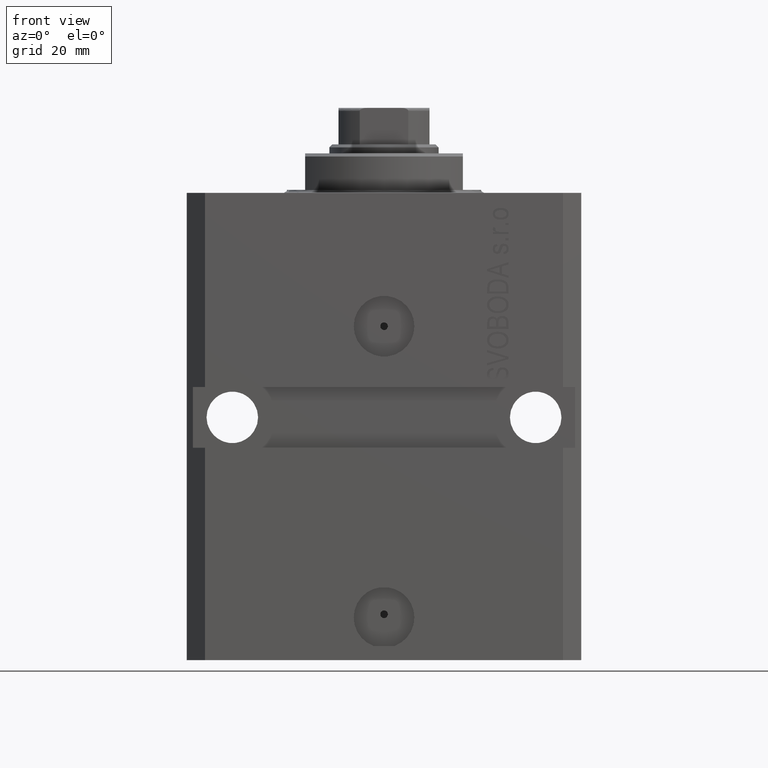
[diagram: clean part render]
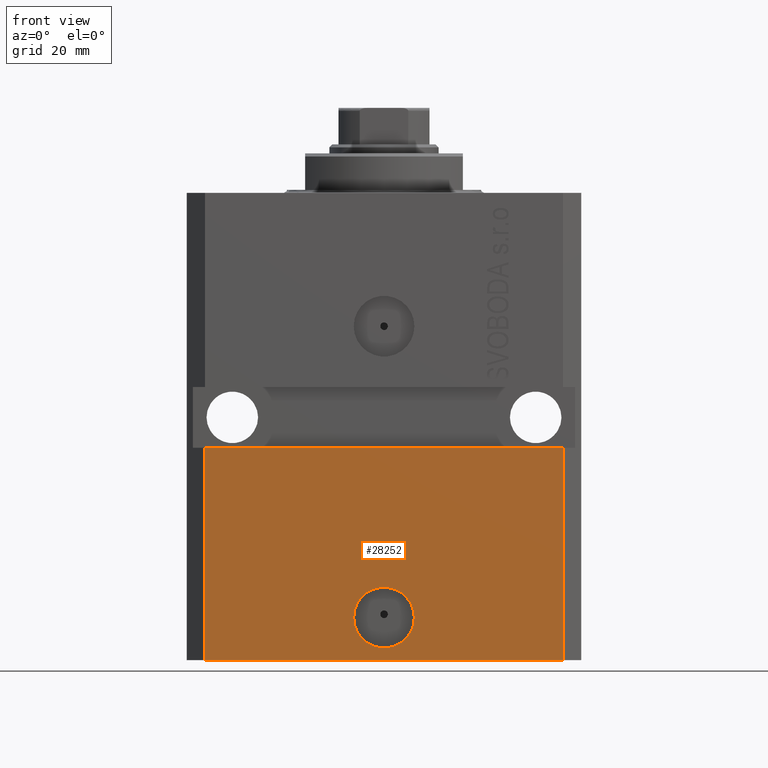
[diagram: same view with one face highlighted and labeled with its STEP entity id]
A machine part, front view. The second image highlights one B-rep face of the part: STEP entity #28252.
In plain terms, the highlighted planar face has unit normal (0, -1, 0).
Its self-contained STEP definition (entity closure, byte-faithful):
#1360 = DIRECTION ( 'NONE',  ( 1.000000000000000000, 1.176083712526788232E-16, 0.000000000000000000 ) ) ;
#2391 = CARTESIAN_POINT ( 'NONE',  ( 29.49999999999650058, -22.49999999999949196, -41.99999999999998579 ) ) ;
#3149 = CARTESIAN_POINT ( 'NONE',  ( 2.646188353185214061E-15, -22.49999999999949551, -69.99999999999998579 ) ) ;
#3982 = EDGE_CURVE ( 'NONE', #42426, #11549, #10822, .T. ) ;
#4935 = CARTESIAN_POINT ( 'NONE',  ( 5.000000000000007994, -22.49999999999949551, -69.99999999999998579 ) ) ;
#5555 = CARTESIAN_POINT ( 'NONE',  ( 29.49999999999650413, -22.49999999999949196, -77.00000000000000000 ) ) ;
#6712 = AXIS2_PLACEMENT_3D ( 'NONE', #3149, #26747, #16426 ) ;
#7100 = LINE ( 'NONE', #21469, #32444 ) ;
#8562 = DIRECTION ( 'NONE',  ( 1.176083712526788232E-16, -1.000000000000000000, 0.000000000000000000 ) ) ;
#8720 = LINE ( 'NONE', #30027, #15617 ) ;
#8935 = VERTEX_POINT ( 'NONE', #2391 ) ;
#8944 = DIRECTION ( 'NONE',  ( 0.000000000000000000, 0.000000000000000000, 1.000000000000000000 ) ) ;
#9447 = CARTESIAN_POINT ( 'NONE',  ( 2.646188353185214061E-15, -22.49999999999949551, -69.99999999999998579 ) ) ;
#9548 = ORIENTED_EDGE ( 'NONE', *, *, #29222, .F. ) ;
#9827 = CARTESIAN_POINT ( 'NONE',  ( -5.000000000000002665, -22.49999999999949551, -69.99999999999998579 ) ) ;
#10755 = EDGE_LOOP ( 'NONE', ( #29074, #13122, #44282, #26911 ) ) ;
#10822 = CIRCLE ( 'NONE', #31616, 5.000000000000005329 ) ;
#11549 = VERTEX_POINT ( 'NONE', #4935 ) ;
#11708 = DIRECTION ( 'NONE',  ( 0.000000000000000000, 0.000000000000000000, 1.000000000000000000 ) ) ;
#11938 = FACE_BOUND ( 'NONE', #31029, .T. ) ;
#13122 = ORIENTED_EDGE ( 'NONE', *, *, #43094, .F. ) ;
#13243 = DIRECTION ( 'NONE',  ( 1.176083712526788232E-16, -1.000000000000000000, 0.000000000000000000 ) ) ;
#13610 = LINE ( 'NONE', #27081, #20153 ) ;
#14279 = DIRECTION ( 'NONE',  ( 1.000000000000000000, 1.067522139062765303E-16, 1.067522139062765303E-16 ) ) ;
#15617 = VECTOR ( 'NONE', #8944, 1000.000000000000000 ) ;
#16426 = DIRECTION ( 'NONE',  ( 1.000000000000000000, 0.000000000000000000, 0.000000000000000000 ) ) ;
#17313 = ORIENTED_EDGE ( 'NONE', *, *, #3982, .F. ) ;
#18117 = CARTESIAN_POINT ( 'NONE',  ( -29.49999999999650413, -22.49999999999949907, -41.99999999999999289 ) ) ;
#20153 = VECTOR ( 'NONE', #34275, 1000.000000000000000 ) ;
#21345 = EDGE_CURVE ( 'NONE', #26090, #33227, #13610, .T. ) ;
#21469 = CARTESIAN_POINT ( 'NONE',  ( -32.49999999999650413, -22.49999999999949907, -41.99999999999999289 ) ) ;
#22037 = FACE_OUTER_BOUND ( 'NONE', #10755, .T. ) ;
#22489 = CIRCLE ( 'NONE', #6712, 5.000000000000005329 ) ;
#25403 = CARTESIAN_POINT ( 'NONE',  ( -29.49999999999650413, -22.49999999999949907, -77.00000000000000000 ) ) ;
#26090 = VERTEX_POINT ( 'NONE', #41737 ) ;
#26747 = DIRECTION ( 'NONE',  ( 1.176083712526788232E-16, -1.000000000000000000, 0.000000000000000000 ) ) ;
#26754 = VECTOR ( 'NONE', #11708, 1000.000000000000000 ) ;
#26911 = ORIENTED_EDGE ( 'NONE', *, *, #31169, .T. ) ;
#27081 = CARTESIAN_POINT ( 'NONE',  ( -29.49999999999650413, -22.49999999999949907, -77.00000000000000000 ) ) ;
#28252 = ADVANCED_FACE ( 'NONE', ( #11938, #22037 ), #36412, .T. ) ;
#29074 = ORIENTED_EDGE ( 'NONE', *, *, #30450, .F. ) ;
#29222 = EDGE_CURVE ( 'NONE', #11549, #42426, #22489, .T. ) ;
#30027 = CARTESIAN_POINT ( 'NONE',  ( -29.49999999999650413, -22.49999999999949907, -77.00000000000000000 ) ) ;
#30450 = EDGE_CURVE ( 'NONE', #44374, #8935, #7100, .T. ) ;
#31029 = EDGE_LOOP ( 'NONE', ( #9548, #17313 ) ) ;
#31169 = EDGE_CURVE ( 'NONE', #33227, #8935, #38651, .T. ) ;
#31616 = AXIS2_PLACEMENT_3D ( 'NONE', #9447, #13243, #44445 ) ;
#32444 = VECTOR ( 'NONE', #14279, 1000.000000000000000 ) ;
#33227 = VERTEX_POINT ( 'NONE', #5555 ) ;
#34275 = DIRECTION ( 'NONE',  ( 1.000000000000000000, 1.176083712526788232E-16, 0.000000000000000000 ) ) ;
#34710 = AXIS2_PLACEMENT_3D ( 'NONE', #25403, #8562, #1360 ) ;
#36412 = PLANE ( 'NONE',  #34710 ) ;
#38651 = LINE ( 'NONE', #42459, #26754 ) ;
#41737 = CARTESIAN_POINT ( 'NONE',  ( -29.49999999999650413, -22.49999999999949907, -77.00000000000000000 ) ) ;
#42426 = VERTEX_POINT ( 'NONE', #9827 ) ;
#42459 = CARTESIAN_POINT ( 'NONE',  ( 29.49999999999650413, -22.49999999999949196, -77.00000000000000000 ) ) ;
#43094 = EDGE_CURVE ( 'NONE', #26090, #44374, #8720, .T. ) ;
#44282 = ORIENTED_EDGE ( 'NONE', *, *, #21345, .T. ) ;
#44374 = VERTEX_POINT ( 'NONE', #18117 ) ;
#44445 = DIRECTION ( 'NONE',  ( 1.000000000000000000, 0.000000000000000000, 0.000000000000000000 ) ) ;